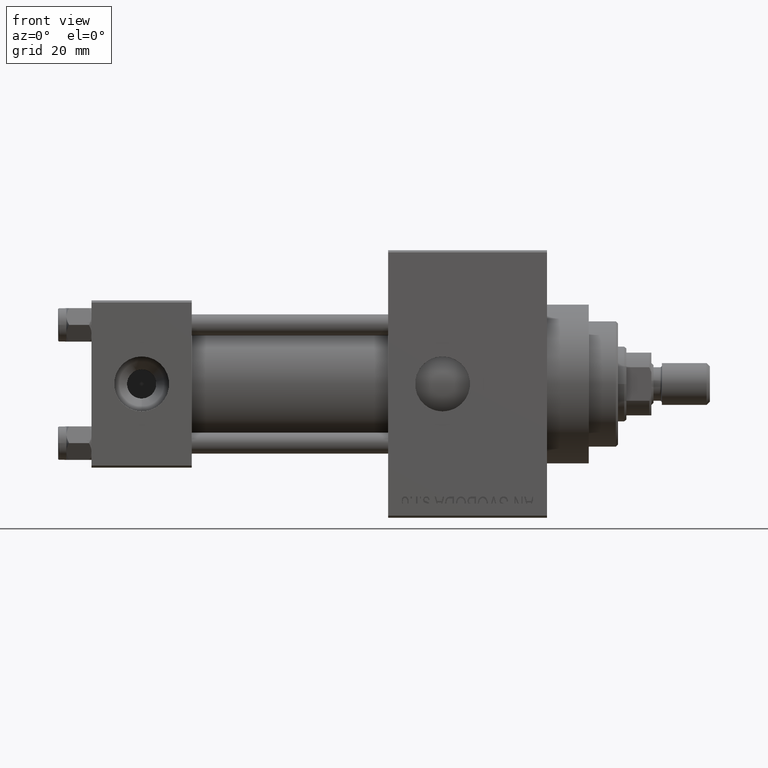
[diagram: clean part render]
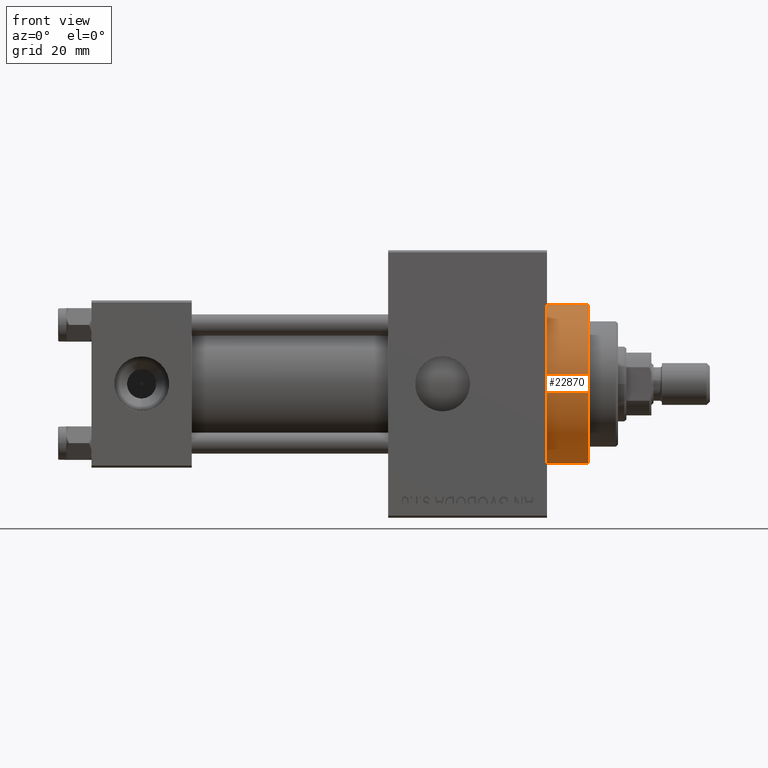
[diagram: same view with one face highlighted and labeled with its STEP entity id]
A machine part, front view. The second image highlights one B-rep face of the part: STEP entity #22870.
In plain terms, the highlighted cylindrical surface (partial cylindrical patch) has radius 19 mm, axis along (-1, -0, -0).
Its self-contained STEP definition (entity closure, byte-faithful):
#608 = VERTEX_POINT ( 'NONE', #33078 ) ;
#858 = AXIS2_PLACEMENT_3D ( 'NONE', #26693, #45435, #18946 ) ;
#2335 = FACE_OUTER_BOUND ( 'NONE', #10291, .T. ) ;
#5463 = EDGE_CURVE ( 'NONE', #33945, #46034, #42256, .T. ) ;
#5765 = EDGE_CURVE ( 'NONE', #15071, #33945, #24929, .T. ) ;
#5836 = ORIENTED_EDGE ( 'NONE', *, *, #5463, .T. ) ;
#7257 = CARTESIAN_POINT ( 'NONE',  ( 119.0000000000000142, 0.000000000000000000, 19.00000000000000000 ) ) ;
#7955 = VECTOR ( 'NONE', #48428, 1000.000000000000000 ) ;
#8373 = ORIENTED_EDGE ( 'NONE', *, *, #11504, .F. ) ;
#10291 = EDGE_LOOP ( 'NONE', ( #8373, #22718, #34797, #5836 ) ) ;
#11504 = EDGE_CURVE ( 'NONE', #608, #46034, #37261, .T. ) ;
#12462 = CARTESIAN_POINT ( 'NONE',  ( 109.0000000000000142, 2.326828918379970970E-15, -19.00000000000000000 ) ) ;
#13583 = DIRECTION ( 'NONE',  ( -1.000000000000000000, -0.000000000000000000, -0.000000000000000000 ) ) ;
#14505 = CARTESIAN_POINT ( 'NONE',  ( 119.0000000000000142, 2.326828918379970970E-15, -19.00000000000000000 ) ) ;
#15071 = VERTEX_POINT ( 'NONE', #7257 ) ;
#16028 = VECTOR ( 'NONE', #40752, 1000.000000000000000 ) ;
#18946 = DIRECTION ( 'NONE',  ( 0.000000000000000000, 0.000000000000000000, -1.000000000000000000 ) ) ;
#20705 = AXIS2_PLACEMENT_3D ( 'NONE', #22734, #48549, #25810 ) ;
#21188 = CARTESIAN_POINT ( 'NONE',  ( 119.0000000000000142, 0.000000000000000000, 19.00000000000000000 ) ) ;
#22718 = ORIENTED_EDGE ( 'NONE', *, *, #30572, .F. ) ;
#22734 = CARTESIAN_POINT ( 'NONE',  ( 109.0000000000000142, 0.000000000000000000, 0.000000000000000000 ) ) ;
#22870 = ADVANCED_FACE ( 'NONE', ( #2335 ), #48088, .T. ) ;
#24929 = LINE ( 'NONE', #21188, #7955 ) ;
#25810 = DIRECTION ( 'NONE',  ( 0.000000000000000000, 0.000000000000000000, -1.000000000000000000 ) ) ;
#26693 = CARTESIAN_POINT ( 'NONE',  ( 119.0000000000000142, 0.000000000000000000, 0.000000000000000000 ) ) ;
#30572 = EDGE_CURVE ( 'NONE', #15071, #608, #43190, .T. ) ;
#33078 = CARTESIAN_POINT ( 'NONE',  ( 119.0000000000000142, 2.326828918379970970E-15, -19.00000000000000000 ) ) ;
#33945 = VERTEX_POINT ( 'NONE', #47231 ) ;
#34797 = ORIENTED_EDGE ( 'NONE', *, *, #5765, .T. ) ;
#37261 = LINE ( 'NONE', #14505, #16028 ) ;
#38953 = AXIS2_PLACEMENT_3D ( 'NONE', #47830, #13583, #44096 ) ;
#40752 = DIRECTION ( 'NONE',  ( -1.000000000000000000, -0.000000000000000000, -0.000000000000000000 ) ) ;
#42256 = CIRCLE ( 'NONE', #20705, 19.00000000000000000 ) ;
#43190 = CIRCLE ( 'NONE', #858, 19.00000000000000000 ) ;
#44096 = DIRECTION ( 'NONE',  ( 0.000000000000000000, 0.000000000000000000, 1.000000000000000000 ) ) ;
#45435 = DIRECTION ( 'NONE',  ( 1.000000000000000000, 0.000000000000000000, 0.000000000000000000 ) ) ;
#46034 = VERTEX_POINT ( 'NONE', #12462 ) ;
#47231 = CARTESIAN_POINT ( 'NONE',  ( 109.0000000000000142, 0.000000000000000000, 19.00000000000000000 ) ) ;
#47830 = CARTESIAN_POINT ( 'NONE',  ( 119.0000000000000142, 0.000000000000000000, 0.000000000000000000 ) ) ;
#48088 = CYLINDRICAL_SURFACE ( 'NONE', #38953, 19.00000000000000000 ) ;
#48428 = DIRECTION ( 'NONE',  ( -1.000000000000000000, -0.000000000000000000, -0.000000000000000000 ) ) ;
#48549 = DIRECTION ( 'NONE',  ( 1.000000000000000000, 0.000000000000000000, 0.000000000000000000 ) ) ;